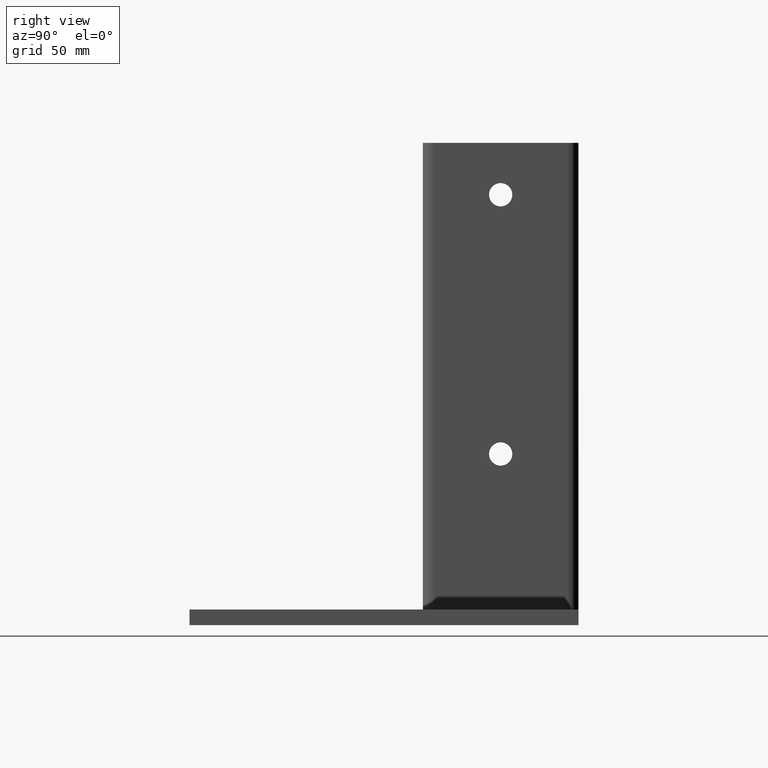
[diagram: clean part render]
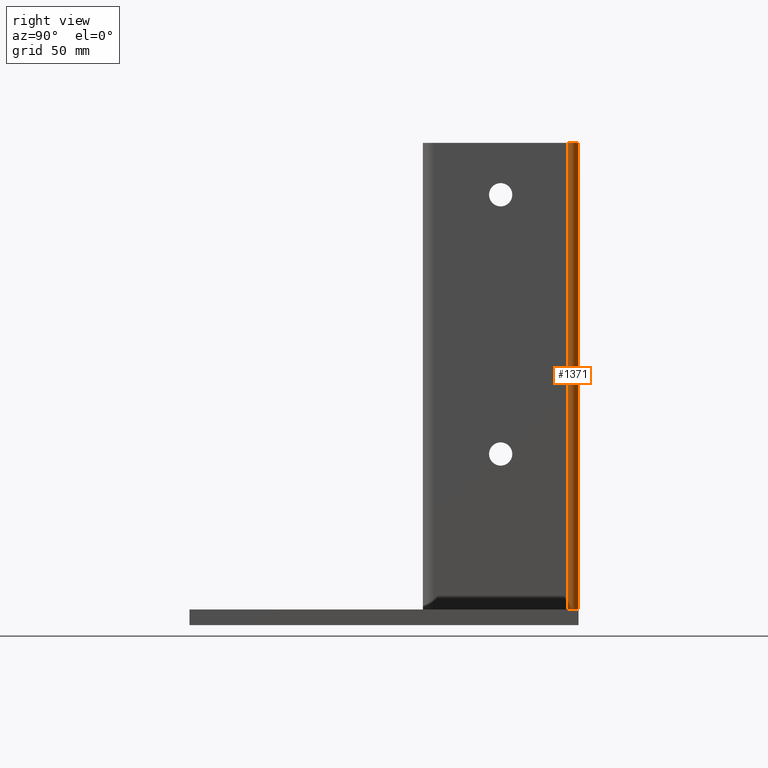
[diagram: same view with one face highlighted and labeled with its STEP entity id]
A machine part, right view. The second image highlights one B-rep face of the part: STEP entity #1371.
In plain terms, the highlighted cylindrical surface (edge-blend (fillet) strip) has radius 4 mm, axis along (0, 0, 1).
Its self-contained STEP definition (entity closure, byte-faithful):
#61 = VERTEX_POINT ( 'NONE', #1235 ) ;
#62 = VERTEX_POINT ( 'NONE', #1230 ) ;
#252 = AXIS2_PLACEMENT_3D ( 'NONE', #1340, #1341, #1342 ) ;
#254 = AXIS2_PLACEMENT_3D ( 'NONE', #1345, #1346, #1347 ) ;
#272 = EDGE_CURVE ( 'NONE', #61, #473, #532, .T. ) ;
#273 = EDGE_CURVE ( 'NONE', #62, #61, #533, .T. ) ;
#274 = EDGE_CURVE ( 'NONE', #472, #62, #529, .T. ) ;
#314 = EDGE_CURVE ( 'NONE', #473, #472, #1039, .T. ) ;
#374 = CARTESIAN_POINT ( 'NONE',  ( 30.00000000000000000, 26.00000000000000400, 90.00000000000000000 ) ) ;
#375 = DIRECTION ( 'NONE',  ( 0.0000000000000000000, 0.0000000000000000000, 1.000000000000000000 ) ) ;
#429 = CARTESIAN_POINT ( 'NONE',  ( 30.00000000000000000, 26.00000000000000400, 180.0000000000000000 ) ) ;
#430 = CARTESIAN_POINT ( 'NONE',  ( 30.00000000000000000, 26.00000000000000400, 3.469446951953614200E-015 ) ) ;
#467 = CARTESIAN_POINT ( 'NONE',  ( 26.00000000000000400, 26.00000000000000400, 0.0000000000000000000 ) ) ;
#468 = DIRECTION ( 'NONE',  ( 0.0000000000000000000, 0.0000000000000000000, 1.000000000000000000 ) ) ;
#469 = DIRECTION ( 'NONE',  ( 1.000000000000000000, 0.0000000000000000000, 0.0000000000000000000 ) ) ;
#472 = VERTEX_POINT ( 'NONE', #429 ) ;
#473 = VERTEX_POINT ( 'NONE', #430 ) ;
#529 = CIRCLE ( 'NONE', #254, 3.999999999999996400 ) ;
#531 = VECTOR ( 'NONE', #1344, 1000.000000000000000 ) ;
#532 = CIRCLE ( 'NONE', #252, 3.999999999999996400 ) ;
#533 = LINE ( 'NONE', #1343, #531 ) ;
#607 = ORIENTED_EDGE ( 'NONE', *, *, #274, .F. ) ;
#608 = ORIENTED_EDGE ( 'NONE', *, *, #273, .F. ) ;
#609 = ORIENTED_EDGE ( 'NONE', *, *, #272, .F. ) ;
#610 = ORIENTED_EDGE ( 'NONE', *, *, #314, .F. ) ;
#694 = EDGE_LOOP ( 'NONE', ( #610, #609, #608, #607 ) ) ;
#891 = AXIS2_PLACEMENT_3D ( 'NONE', #467, #468, #469 ) ;
#1039 = LINE ( 'NONE', #374, #1040 ) ;
#1040 = VECTOR ( 'NONE', #375, 1000.000000000000000 ) ;
#1095 = FACE_OUTER_BOUND ( 'NONE', #694, .T. ) ;
#1096 = CYLINDRICAL_SURFACE ( 'NONE', #891, 3.999999999999996400 ) ;
#1230 = CARTESIAN_POINT ( 'NONE',  ( 26.00000003200000300, 30.00000000000000000, 180.0000000000000000 ) ) ;
#1235 = CARTESIAN_POINT ( 'NONE',  ( 26.00000003200000300, 30.00000000000000000, 4.500000567488060500E-008 ) ) ;
#1340 = CARTESIAN_POINT ( 'NONE',  ( 26.00000000000000400, 26.00000000000000400, 0.0000000000000000000 ) ) ;
#1341 = DIRECTION ( 'NONE',  ( -0.0000000000000000000, -0.0000000000000000000, -1.000000000000000000 ) ) ;
#1342 = DIRECTION ( 'NONE',  ( 1.000000000000000000, -8.673617379884043400E-016, 0.0000000000000000000 ) ) ;
#1343 = CARTESIAN_POINT ( 'NONE',  ( 26.00000006400000500, 30.00000000000000000, 87.00000000000000000 ) ) ;
#1344 = DIRECTION ( 'NONE',  ( -0.0000000000000000000, -0.0000000000000000000, -1.000000000000000000 ) ) ;
#1345 = CARTESIAN_POINT ( 'NONE',  ( 26.00000000000000400, 26.00000000000000400, 180.0000000000000000 ) ) ;
#1346 = DIRECTION ( 'NONE',  ( 0.0000000000000000000, 0.0000000000000000000, 1.000000000000000000 ) ) ;
#1347 = DIRECTION ( 'NONE',  ( 1.000000000000000000, 0.0000000000000000000, 0.0000000000000000000 ) ) ;
#1371 = ADVANCED_FACE ( 'NONE', ( #1095 ), #1096, .T. ) ;